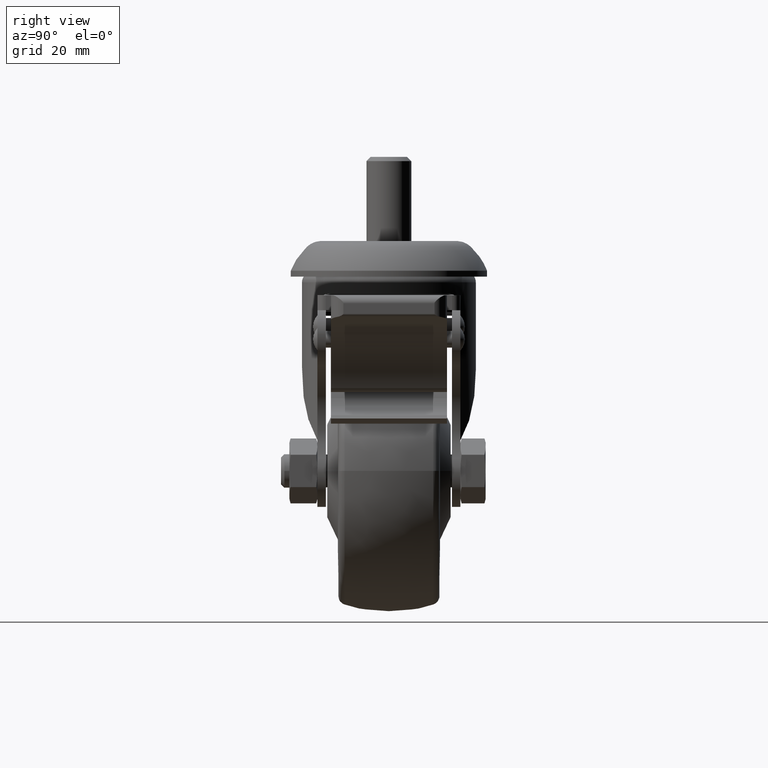
[diagram: clean part render]
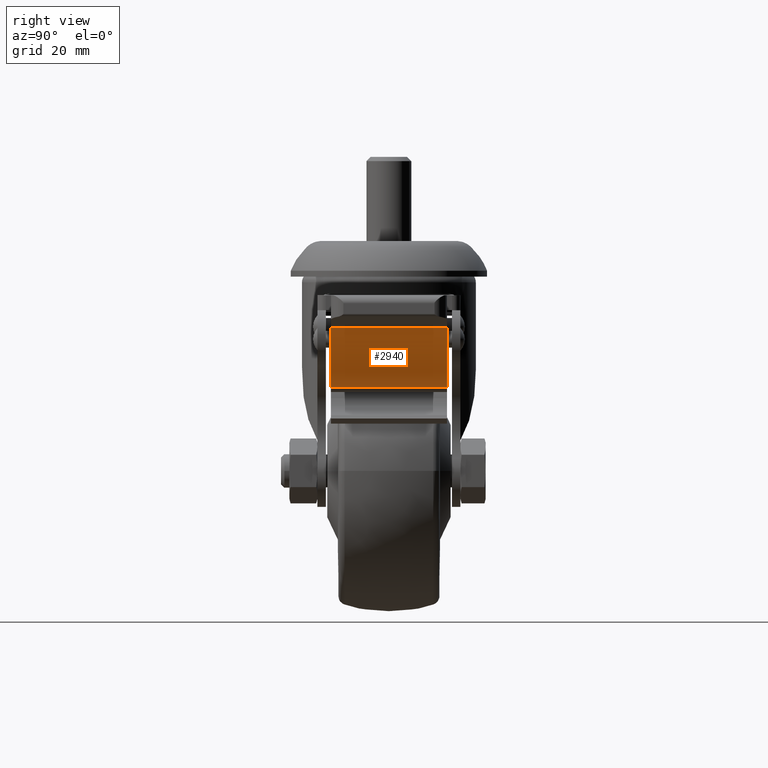
[diagram: same view with one face highlighted and labeled with its STEP entity id]
A machine part, right view. The second image highlights one B-rep face of the part: STEP entity #2940.
In plain terms, the highlighted cylindrical surface (partial cylindrical patch) has radius 16.8 mm, axis along (0.0001, -1, -0).
Its self-contained STEP definition (entity closure, byte-faithful):
#176=LINE('',#4993,#337);
#177=LINE('',#4998,#338);
#337=VECTOR('',#3950,1000.);
#338=VECTOR('',#3955,1000.);
#473=CYLINDRICAL_SURFACE('',#3403,16.8);
#674=FACE_OUTER_BOUND('',#872,.T.);
#872=EDGE_LOOP('',(#2191,#2192,#2193,#2194));
#1087=CIRCLE('',#3404,16.8);
#1088=CIRCLE('',#3405,16.8);
#1358=VERTEX_POINT('',#4986);
#1360=VERTEX_POINT('',#4991);
#1361=VERTEX_POINT('',#4995);
#1362=VERTEX_POINT('',#4997);
#1670=EDGE_CURVE('',#1358,#1360,#176,.T.);
#1671=EDGE_CURVE('',#1361,#1360,#1087,.T.);
#1672=EDGE_CURVE('',#1362,#1361,#177,.T.);
#1673=EDGE_CURVE('',#1362,#1358,#1088,.T.);
#2191=ORIENTED_EDGE('',*,*,#1671,.F.);
#2192=ORIENTED_EDGE('',*,*,#1672,.F.);
#2193=ORIENTED_EDGE('',*,*,#1673,.T.);
#2194=ORIENTED_EDGE('',*,*,#1670,.T.);
#2940=ADVANCED_FACE('',(#674),#473,.F.);
#3403=AXIS2_PLACEMENT_3D('',#4994,#3951,#3952);
#3404=AXIS2_PLACEMENT_3D('',#4996,#3953,#3954);
#3405=AXIS2_PLACEMENT_3D('',#4999,#3956,#3957);
#3950=DIRECTION('',(0.,0.,-1.));
#3951=DIRECTION('center_axis',(0.,0.,-1.));
#3952=DIRECTION('ref_axis',(-1.,0.,0.));
#3953=DIRECTION('center_axis',(0.,0.,1.));
#3954=DIRECTION('ref_axis',(1.,0.,0.));
#3955=DIRECTION('',(0.,0.,-1.));
#3956=DIRECTION('center_axis',(0.,0.,1.));
#3957=DIRECTION('ref_axis',(1.,0.,0.));
#4986=CARTESIAN_POINT('',(-20.7442828698473,2.13840828482601,10.35));
#4991=CARTESIAN_POINT('',(-20.7442828698473,2.13840828482601,-10.35));
#4993=CARTESIAN_POINT('',(-20.7442828698473,2.13840828482601,10.35));
#4994=CARTESIAN_POINT('Origin',(-24.229999995106,-14.2960000137005,10.35));
#4995=CARTESIAN_POINT('',(-8.40907870818704,-8.64458871800507,-10.35));
#4996=CARTESIAN_POINT('Origin',(-24.229999995106,-14.2960000137005,-10.35));
#4997=CARTESIAN_POINT('',(-8.40907870818704,-8.64458871800507,10.35));
#4998=CARTESIAN_POINT('',(-8.40907870818704,-8.64458871800507,10.35));
#4999=CARTESIAN_POINT('Origin',(-24.229999995106,-14.2960000137005,10.35));